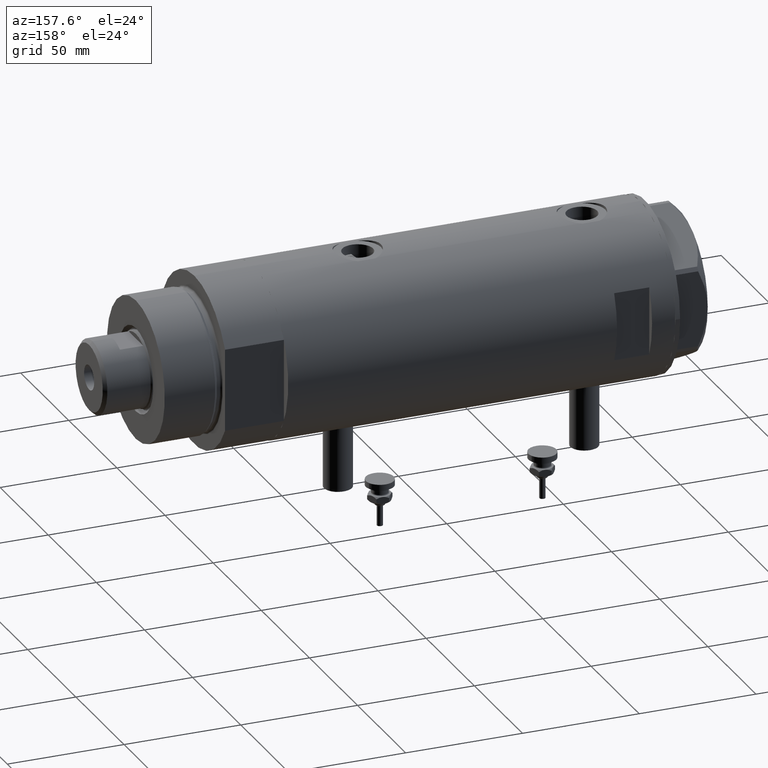
[diagram: clean part render]
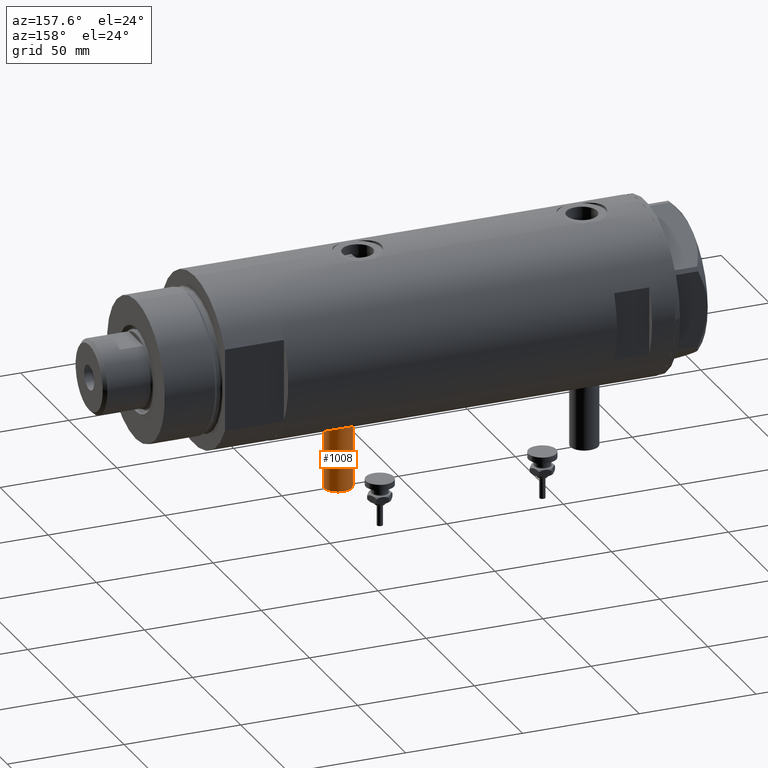
[diagram: same view with one face highlighted and labeled with its STEP entity id]
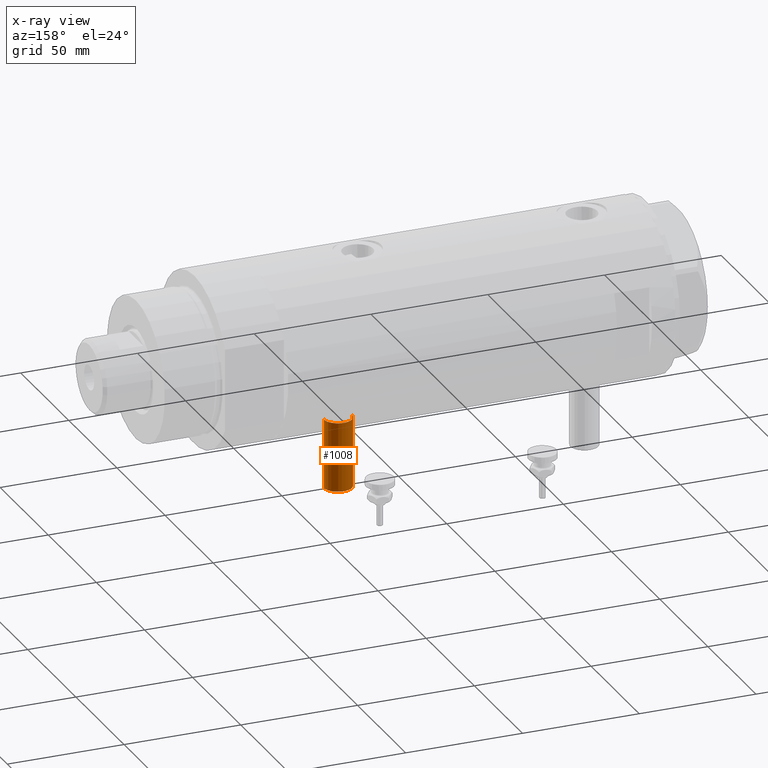
[diagram: x-ray of the same camera — body ghosted, the highlighted face saturated]
A machine part, auxiliary view. The second image highlights one B-rep face of the part: STEP entity #1008.
The next image is the same camera in x-ray: the body ghosted, the highlighted face saturated — about 0% of this face is hidden behind the body in this view.
In plain terms, the highlighted cylindrical surface (edge-blend (fillet) strip) has radius 6 mm, axis along (0, 0, 1).
Its self-contained STEP definition (entity closure, byte-faithful):
#90 = CIRCLE ( 'NONE', #4787, 6.000000000000005329 ) ;
#536 = CARTESIAN_POINT ( 'NONE',  ( -65.00000000000000000, 7.347880794884122694E-16, -40.59999999999999432 ) ) ;
#553 = EDGE_CURVE ( 'NONE', #5595, #2626, #2817, .T. ) ;
#766 = EDGE_CURVE ( 'NONE', #2626, #5502, #2673, .T. ) ;
#1008 = ADVANCED_FACE ( 'NONE', ( #1723 ), #1674, .T. ) ;
#1010 = EDGE_CURVE ( 'NONE', #3091, #5502, #1754, .T. ) ;
#1130 = VECTOR ( 'NONE', #2372, 1000.000000000000000 ) ;
#1306 = ORIENTED_EDGE ( 'NONE', *, *, #766, .T. ) ;
#1327 = VECTOR ( 'NONE', #3119, 1000.000000000000000 ) ;
#1674 = CYLINDRICAL_SURFACE ( 'NONE', #3631, 6.000000000000005329 ) ;
#1723 = FACE_OUTER_BOUND ( 'NONE', #4744, .T. ) ;
#1754 = LINE ( 'NONE', #3576, #1327 ) ;
#1844 = EDGE_CURVE ( 'NONE', #5595, #3091, #90, .T. ) ;
#1849 = DIRECTION ( 'NONE',  ( -1.000000000000000000, 0.000000000000000000, 0.000000000000000000 ) ) ;
#2372 = DIRECTION ( 'NONE',  ( 1.000000000000000000, -0.000000000000000000, -0.000000000000000000 ) ) ;
#2626 = VERTEX_POINT ( 'NONE', #5114 ) ;
#2673 = CIRCLE ( 'NONE', #4025, 6.000000000000005329 ) ;
#2792 = CARTESIAN_POINT ( 'NONE',  ( -65.00000000000000000, 7.347880794884119736E-16, -40.59999999999999432 ) ) ;
#2817 = LINE ( 'NONE', #536, #1130 ) ;
#3091 = VERTEX_POINT ( 'NONE', #3846 ) ;
#3111 = DIRECTION ( 'NONE',  ( -1.000000000000000000, 0.000000000000000000, 0.000000000000000000 ) ) ;
#3119 = DIRECTION ( 'NONE',  ( 1.000000000000000000, -0.000000000000000000, -0.000000000000000000 ) ) ;
#3498 = CARTESIAN_POINT ( 'NONE',  ( -35.29999999999999716, 0.000000000000000000, -52.60000000000000853 ) ) ;
#3576 = CARTESIAN_POINT ( 'NONE',  ( -65.00000000000000000, 0.000000000000000000, -52.60000000000000853 ) ) ;
#3631 = AXIS2_PLACEMENT_3D ( 'NONE', #5844, #4484, #5399 ) ;
#3846 = CARTESIAN_POINT ( 'NONE',  ( -65.00000000000000000, 0.000000000000000000, -52.60000000000000853 ) ) ;
#4018 = CARTESIAN_POINT ( 'NONE',  ( -65.00000000000000000, 0.000000000000000000, -46.60000000000000142 ) ) ;
#4025 = AXIS2_PLACEMENT_3D ( 'NONE', #5939, #1849, #4605 ) ;
#4484 = DIRECTION ( 'NONE',  ( 1.000000000000000000, -0.000000000000000000, -0.000000000000000000 ) ) ;
#4549 = ORIENTED_EDGE ( 'NONE', *, *, #1844, .F. ) ;
#4605 = DIRECTION ( 'NONE',  ( 0.000000000000000000, 0.000000000000000000, 1.000000000000000000 ) ) ;
#4744 = EDGE_LOOP ( 'NONE', ( #4549, #5932, #1306, #5002 ) ) ;
#4787 = AXIS2_PLACEMENT_3D ( 'NONE', #4018, #3111, #5749 ) ;
#5002 = ORIENTED_EDGE ( 'NONE', *, *, #1010, .F. ) ;
#5114 = CARTESIAN_POINT ( 'NONE',  ( -35.29999999999999716, 7.347880794884119736E-16, -40.59999999999999432 ) ) ;
#5399 = DIRECTION ( 'NONE',  ( 0.000000000000000000, 0.000000000000000000, -1.000000000000000000 ) ) ;
#5502 = VERTEX_POINT ( 'NONE', #3498 ) ;
#5595 = VERTEX_POINT ( 'NONE', #2792 ) ;
#5749 = DIRECTION ( 'NONE',  ( 0.000000000000000000, 0.000000000000000000, 1.000000000000000000 ) ) ;
#5844 = CARTESIAN_POINT ( 'NONE',  ( -65.00000000000000000, 0.000000000000000000, -46.60000000000000142 ) ) ;
#5932 = ORIENTED_EDGE ( 'NONE', *, *, #553, .T. ) ;
#5939 = CARTESIAN_POINT ( 'NONE',  ( -35.29999999999999716, 0.000000000000000000, -46.60000000000000142 ) ) ;